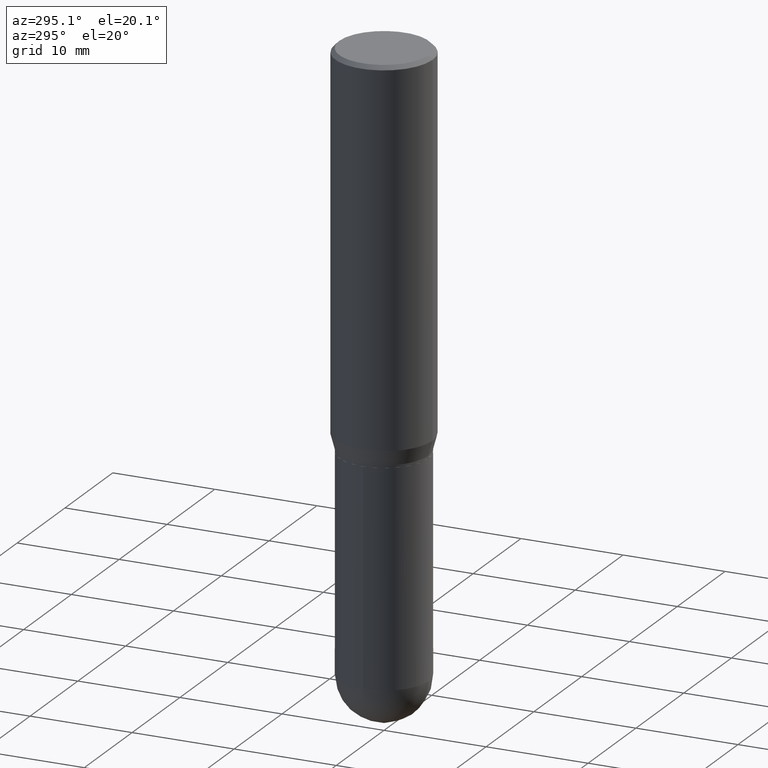
[diagram: clean part render]
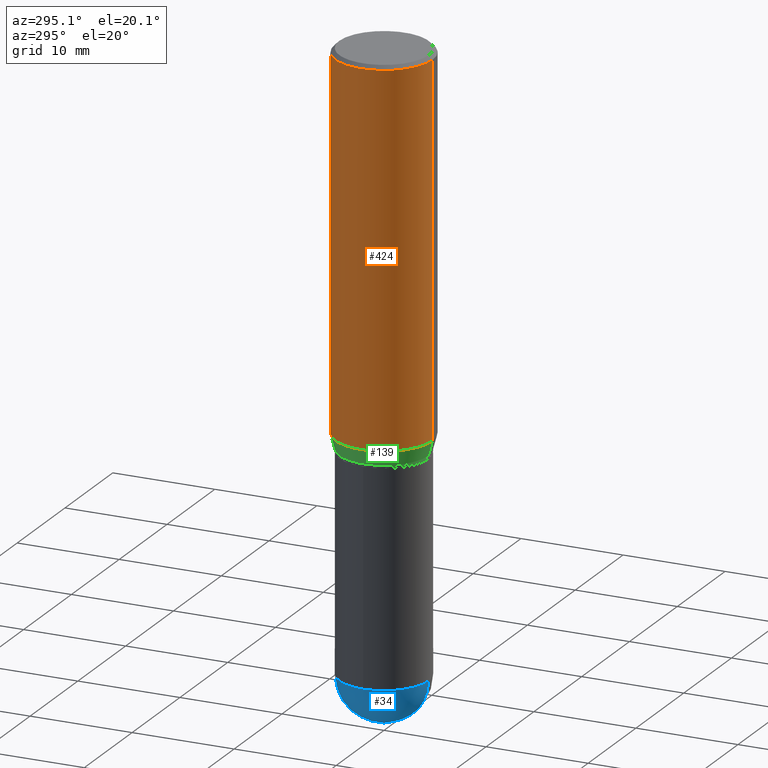
[diagram: same view with three faces highlighted in distinct colors, each labeled with its STEP entity id]
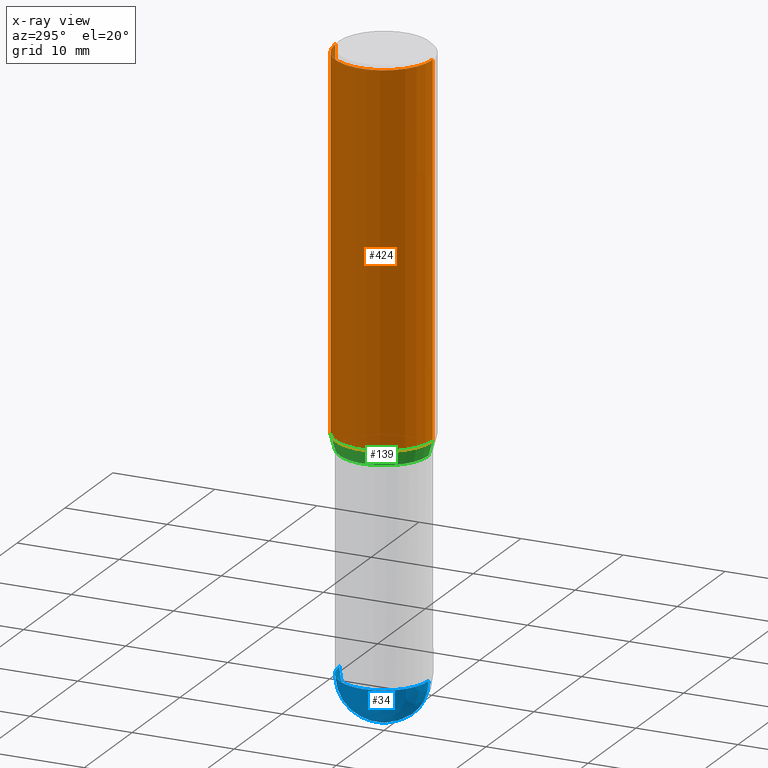
[diagram: x-ray of the same camera — body ghosted, the three highlighted faces saturated]
A machine part, auxiliary view with three faces highlighted in distinct colors.
The next image is the same camera in x-ray (body ghosted, the three faces saturated) — at least one of them is partly hidden behind the body in this view.
Their STEP definitions:

[orange] entity #424 — the highlighted cylindrical surface (partial cylindrical patch) has radius 4.7625 mm, axis along (-0, 0, 1).
#2 = CARTESIAN_POINT ( 'NONE',  ( 3.667651660176797518E-31, -5.238011857969553431E-17, -0.01500000000000015730 ) ) ;
#3 = ORIENTED_EDGE ( 'NONE', *, *, #133, .T. ) ;
#19 = CARTESIAN_POINT ( 'NONE',  ( 1.332267629550222953E-15, 0.1874999999999999445, -0.01500000000000081303 ) ) ;
#24 = CARTESIAN_POINT ( 'NONE',  ( 0.000000000000000000, 0.000000000000000000, 0.000000000000000000 ) ) ;
#31 = AXIS2_PLACEMENT_3D ( 'NONE', #428, #305, #110 ) ;
#36 = ORIENTED_EDGE ( 'NONE', *, *, #404, .F. ) ;
#40 = CIRCLE ( 'NONE', #31, 0.1875000000000000278 ) ;
#50 = AXIS2_PLACEMENT_3D ( 'NONE', #2, #439, #116 ) ;
#79 = VERTEX_POINT ( 'NONE', #280 ) ;
#93 = FACE_OUTER_BOUND ( 'NONE', #193, .T. ) ;
#105 = VERTEX_POINT ( 'NONE', #246 ) ;
#110 = DIRECTION ( 'NONE',  ( -6.982962677686265922E-15, -1.000000000000000000, 2.913971193241880372E-15 ) ) ;
#116 = DIRECTION ( 'NONE',  ( -6.982962677686265922E-15, -1.000000000000000000, 3.494488891895536035E-15 ) ) ;
#133 = EDGE_CURVE ( 'NONE', #105, #431, #40, .T. ) ;
#137 = LINE ( 'NONE', #217, #322 ) ;
#164 = LINE ( 'NONE', #407, #504 ) ;
#166 = DIRECTION ( 'NONE',  ( -2.445101106784506129E-29, 3.492007905312998807E-15, 1.000000000000000000 ) ) ;
#178 = AXIS2_PLACEMENT_3D ( 'NONE', #24, #166, #319 ) ;
#180 = EDGE_CURVE ( 'NONE', #325, #79, #430, .T. ) ;
#193 = EDGE_LOOP ( 'NONE', ( #36, #3, #302, #426 ) ) ;
#217 = CARTESIAN_POINT ( 'NONE',  ( -1.309305502066175008E-15, -0.1875000000000000278, 6.547514822461873257E-16 ) ) ;
#246 = CARTESIAN_POINT ( 'NONE',  ( 1.332267629550222558E-15, 0.1874999999999950318, -1.431780007401926014 ) ) ;
#247 = CARTESIAN_POINT ( 'NONE',  ( -1.309305502066140101E-15, -0.1875000000000049960, -1.431780007401924903 ) ) ;
#280 = CARTESIAN_POINT ( 'NONE',  ( -1.309305502066174614E-15, -0.1875000000000000833, -0.01499999999999950331 ) ) ;
#302 = ORIENTED_EDGE ( 'NONE', *, *, #449, .T. ) ;
#305 = DIRECTION ( 'NONE',  ( -2.445101106784506129E-29, 3.492007905312998807E-15, 1.000000000000000000 ) ) ;
#319 = DIRECTION ( 'NONE',  ( -6.982962677686265922E-15, -1.000000000000000000, 3.492007905312998413E-15 ) ) ;
#322 = VECTOR ( 'NONE', #506, 39.37007874015748143 ) ;
#325 = VERTEX_POINT ( 'NONE', #19 ) ;
#367 = CYLINDRICAL_SURFACE ( 'NONE', #178, 0.1875000000000000278 ) ;
#404 = EDGE_CURVE ( 'NONE', #105, #325, #164, .T. ) ;
#407 = CARTESIAN_POINT ( 'NONE',  ( 1.332267629550187651E-15, 0.1875000000000000278, -6.547514822461873257E-16 ) ) ;
#424 = ADVANCED_FACE ( 'NONE', ( #93 ), #367, .T. ) ;
#426 = ORIENTED_EDGE ( 'NONE', *, *, #180, .F. ) ;
#428 = CARTESIAN_POINT ( 'NONE',  ( 3.500846880770375597E-29, -4.999787104516626728E-15, -1.431780007401925348 ) ) ;
#430 = CIRCLE ( 'NONE', #50, 0.1875000000000000278 ) ;
#431 = VERTEX_POINT ( 'NONE', #247 ) ;
#439 = DIRECTION ( 'NONE',  ( -2.445101106784506129E-29, 3.492007905312998807E-15, 1.000000000000000000 ) ) ;
#449 = EDGE_CURVE ( 'NONE', #431, #79, #137, .T. ) ;
#462 = DIRECTION ( 'NONE',  ( -2.445101106784506129E-29, 3.492007905312998807E-15, 1.000000000000000000 ) ) ;
#504 = VECTOR ( 'NONE', #462, 39.37007874015748143 ) ;
#506 = DIRECTION ( 'NONE',  ( -2.445101106784506129E-29, 3.492007905312998807E-15, 1.000000000000000000 ) ) ;

[blue] entity #34 — the highlighted spherical surface has radius 4.3663 mm.
#20 = SPHERICAL_SURFACE ( 'NONE', #143, 0.1718999999999999417 ) ;
#25 = VERTEX_POINT ( 'NONE', #124 ) ;
#27 = DIRECTION ( 'NONE',  ( -2.445468806185136597E-29, 3.491481338843145583E-15, 1.000000000000000000 ) ) ;
#34 = ADVANCED_FACE ( 'NONE', ( #323 ), #20, .T. ) ;
#43 = EDGE_CURVE ( 'NONE', #106, #119, #422, .T. ) ;
#46 = ORIENTED_EDGE ( 'NONE', *, *, #446, .F. ) ;
#53 = ORIENTED_EDGE ( 'NONE', *, *, #43, .T. ) ;
#62 = CIRCLE ( 'NONE', #336, 0.1718999999999999417 ) ;
#69 = EDGE_CURVE ( 'NONE', #106, #25, #62, .T. ) ;
#71 = CIRCLE ( 'NONE', #395, 0.1719000000000000250 ) ;
#106 = VERTEX_POINT ( 'NONE', #413 ) ;
#111 = VERTEX_POINT ( 'NONE', #211 ) ;
#119 = VERTEX_POINT ( 'NONE', #375 ) ;
#121 = DIRECTION ( 'NONE',  ( 6.982962677686266711E-15, 1.000000000000000000, 0.000000000000000000 ) ) ;
#124 = CARTESIAN_POINT ( 'NONE',  ( 1.200371284294326039E-15, 0.1718999999999918094, -2.328100000000000946 ) ) ;
#143 = AXIS2_PLACEMENT_3D ( 'NONE', #314, #316, #207 ) ;
#202 = AXIS2_PLACEMENT_3D ( 'NONE', #358, #240, #410 ) ;
#207 = DIRECTION ( 'NONE',  ( 6.982962677686265922E-15, 1.000000000000000000, -3.178415350394722463E-15 ) ) ;
#211 = CARTESIAN_POINT ( 'NONE',  ( -0.1719000000000000250, -5.461446893841112247E-15, -2.328100000000000058 ) ) ;
#240 = DIRECTION ( 'NONE',  ( -1.000000000000000000, 7.105427357601001070E-15, -4.926315508542082329E-29 ) ) ;
#250 = DIRECTION ( 'NONE',  ( 1.000000000000000000, -6.982962677686271444E-15, 0.000000000000000000 ) ) ;
#279 = DIRECTION ( 'NONE',  ( 1.000000000000000000, -6.982962677686271444E-15, 0.000000000000000000 ) ) ;
#286 = CARTESIAN_POINT ( 'NONE',  ( 5.678595619168622984E-29, -8.149569383438070914E-15, -2.328100000000000058 ) ) ;
#287 = DIRECTION ( 'NONE',  ( -2.445468806185136597E-29, 3.491481338843145583E-15, 1.000000000000000000 ) ) ;
#296 = EDGE_CURVE ( 'NONE', #111, #119, #377, .T. ) ;
#314 = CARTESIAN_POINT ( 'NONE',  ( 5.678595619168622984E-29, -8.149569383438070914E-15, -2.328100000000000058 ) ) ;
#316 = DIRECTION ( 'NONE',  ( -1.000000000000000000, 6.982962677686265922E-15, -4.883557194083112340E-29 ) ) ;
#323 = FACE_OUTER_BOUND ( 'NONE', #508, .T. ) ;
#336 = AXIS2_PLACEMENT_3D ( 'NONE', #286, #459, #121 ) ;
#358 = CARTESIAN_POINT ( 'NONE',  ( 5.678595619168622984E-29, -8.149569383438070914E-15, -2.328100000000000058 ) ) ;
#359 = CARTESIAN_POINT ( 'NONE',  ( 5.693295927679617284E-29, -8.128517704960729139E-15, -2.328100000000000058 ) ) ;
#369 = CARTESIAN_POINT ( 'NONE',  ( 5.693295927679617284E-29, -8.128517704960729139E-15, -2.328100000000000058 ) ) ;
#375 = CARTESIAN_POINT ( 'NONE',  ( -1.221422962771555008E-15, -0.1719000000000081296, -2.328099999999999614 ) ) ;
#377 = CIRCLE ( 'NONE', #469, 0.1719000000000000250 ) ;
#388 = ORIENTED_EDGE ( 'NONE', *, *, #69, .F. ) ;
#395 = AXIS2_PLACEMENT_3D ( 'NONE', #369, #27, #250 ) ;
#410 = DIRECTION ( 'NONE',  ( -7.105427357601001070E-15, -1.000000000000000000, 0.000000000000000000 ) ) ;
#413 = CARTESIAN_POINT ( 'NONE',  ( 6.106321861207344902E-29, -8.739229186346536619E-15, -2.500000000000000000 ) ) ;
#422 = CIRCLE ( 'NONE', #202, 0.1718999999999999417 ) ;
#446 = EDGE_CURVE ( 'NONE', #25, #111, #71, .T. ) ;
#459 = DIRECTION ( 'NONE',  ( 1.000000000000000000, -6.982962677686265922E-15, 4.883557194083112340E-29 ) ) ;
#469 = AXIS2_PLACEMENT_3D ( 'NONE', #359, #287, #279 ) ;
#499 = ORIENTED_EDGE ( 'NONE', *, *, #296, .F. ) ;
#508 = EDGE_LOOP ( 'NONE', ( #388, #53, #499, #46 ) ) ;

[green] entity #139 — the highlighted conical surface has half-angle 15 deg.
#7 = VECTOR ( 'NONE', #157, 39.37007874015748854 ) ;
#10 = VERTEX_POINT ( 'NONE', #289 ) ;
#12 = CARTESIAN_POINT ( 'NONE',  ( 1.276845296160934931E-15, 0.1718999999999946959, -1.490000000000000879 ) ) ;
#14 = CARTESIAN_POINT ( 'NONE',  ( 1.221422962771647501E-15, 0.1718999999999946959, -1.490000000000000879 ) ) ;
#16 = EDGE_CURVE ( 'NONE', #10, #431, #366, .T. ) ;
#26 = AXIS2_PLACEMENT_3D ( 'NONE', #58, #213, #56 ) ;
#31 = AXIS2_PLACEMENT_3D ( 'NONE', #428, #305, #110 ) ;
#40 = CIRCLE ( 'NONE', #31, 0.1875000000000000278 ) ;
#56 = DIRECTION ( 'NONE',  ( -6.982962677686265922E-15, -1.000000000000000000, 3.178415350394723646E-15 ) ) ;
#58 = CARTESIAN_POINT ( 'NONE',  ( 3.643200649108914518E-29, -5.203091778916368972E-15, -1.490000000000000213 ) ) ;
#84 = EDGE_LOOP ( 'NONE', ( #181, #383, #438, #199 ) ) ;
#91 = CARTESIAN_POINT ( 'NONE',  ( -1.200371284294231968E-15, -0.1719000000000050765, -1.489999999999999769 ) ) ;
#103 = AXIS2_PLACEMENT_3D ( 'NONE', #155, #189, #276 ) ;
#105 = VERTEX_POINT ( 'NONE', #246 ) ;
#108 = VECTOR ( 'NONE', #501, 39.37007874015748143 ) ;
#110 = DIRECTION ( 'NONE',  ( -6.982962677686265922E-15, -1.000000000000000000, 2.913971193241880372E-15 ) ) ;
#133 = EDGE_CURVE ( 'NONE', #105, #431, #40, .T. ) ;
#139 = ADVANCED_FACE ( 'NONE', ( #228 ), #264, .T. ) ;
#155 = CARTESIAN_POINT ( 'NONE',  ( 3.643200649108914518E-29, -5.203091778916368972E-15, -1.490000000000000213 ) ) ;
#157 = DIRECTION ( 'NONE',  ( 1.839019923739597949E-15, 0.2588190451025246253, 0.9659258262890670910 ) ) ;
#181 = ORIENTED_EDGE ( 'NONE', *, *, #253, .F. ) ;
#189 = DIRECTION ( 'NONE',  ( -2.445101106784506129E-29, 3.492007905312998807E-15, 1.000000000000000000 ) ) ;
#199 = ORIENTED_EDGE ( 'NONE', *, *, #133, .F. ) ;
#213 = DIRECTION ( 'NONE',  ( -2.445101106784506129E-29, 3.492007905312998807E-15, 1.000000000000000000 ) ) ;
#228 = FACE_OUTER_BOUND ( 'NONE', #84, .T. ) ;
#233 = CIRCLE ( 'NONE', #26, 0.1718999999999998862 ) ;
#246 = CARTESIAN_POINT ( 'NONE',  ( 1.332267629550222558E-15, 0.1874999999999950318, -1.431780007401926014 ) ) ;
#247 = CARTESIAN_POINT ( 'NONE',  ( -1.309305502066140101E-15, -0.1875000000000049960, -1.431780007401924903 ) ) ;
#253 = EDGE_CURVE ( 'NONE', #512, #105, #356, .T. ) ;
#264 = CONICAL_SURFACE ( 'NONE', #103, 0.1718999999999998862, 0.2617993877991499629 ) ;
#276 = DIRECTION ( 'NONE',  ( -6.982962677686265922E-15, -1.000000000000000000, 3.178415350394723646E-15 ) ) ;
#289 = CARTESIAN_POINT ( 'NONE',  ( -1.200371284294231968E-15, -0.1719000000000050765, -1.489999999999999769 ) ) ;
#305 = DIRECTION ( 'NONE',  ( -2.445101106784506129E-29, 3.492007905312998807E-15, 1.000000000000000000 ) ) ;
#311 = EDGE_CURVE ( 'NONE', #512, #10, #233, .T. ) ;
#356 = LINE ( 'NONE', #14, #7 ) ;
#366 = LINE ( 'NONE', #91, #108 ) ;
#383 = ORIENTED_EDGE ( 'NONE', *, *, #311, .T. ) ;
#428 = CARTESIAN_POINT ( 'NONE',  ( 3.500846880770375597E-29, -4.999787104516626728E-15, -1.431780007401925348 ) ) ;
#431 = VERTEX_POINT ( 'NONE', #247 ) ;
#438 = ORIENTED_EDGE ( 'NONE', *, *, #16, .T. ) ;
#501 = DIRECTION ( 'NONE',  ( -1.807323732225328167E-15, -0.2588190451025179084, 0.9659258262890690894 ) ) ;
#512 = VERTEX_POINT ( 'NONE', #12 ) ;